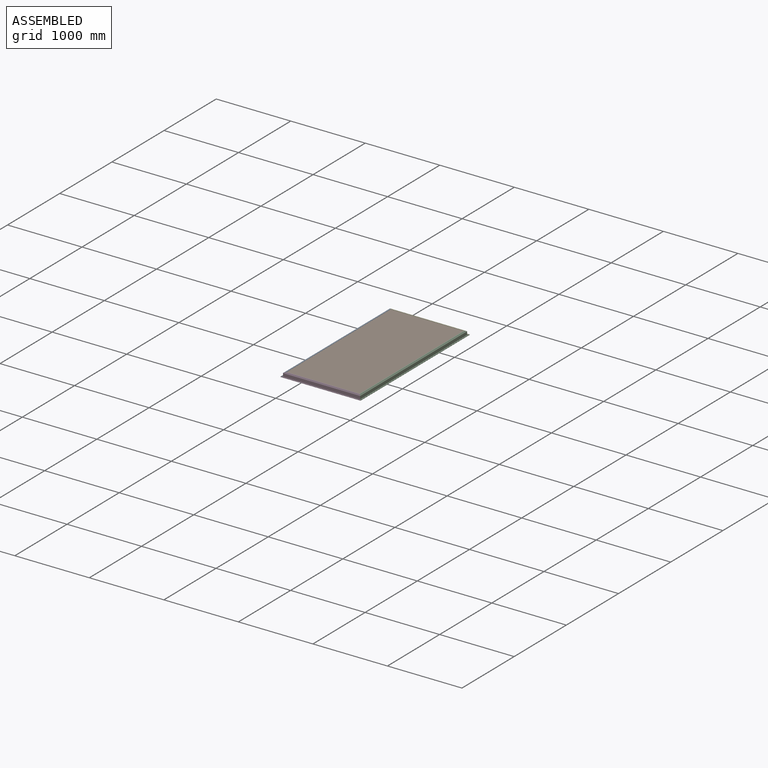
[diagram: assembled view]
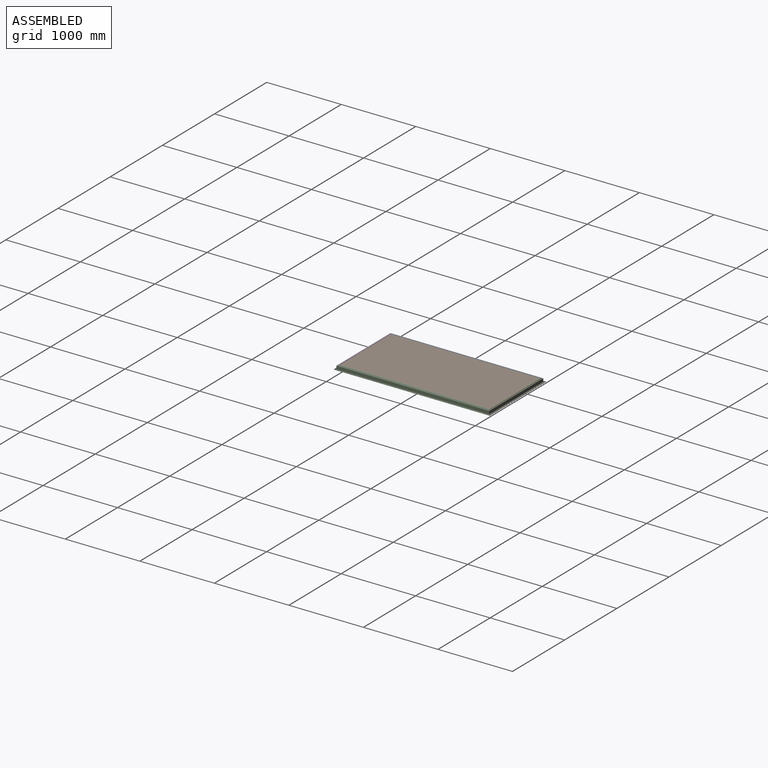
[diagram: assembled view, second angle]
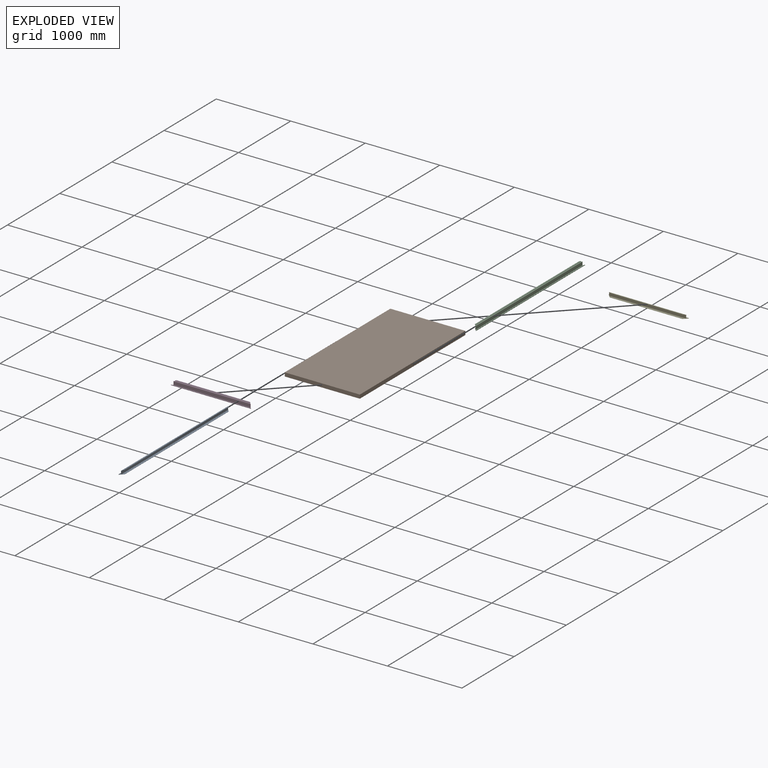
[diagram: exploded view]
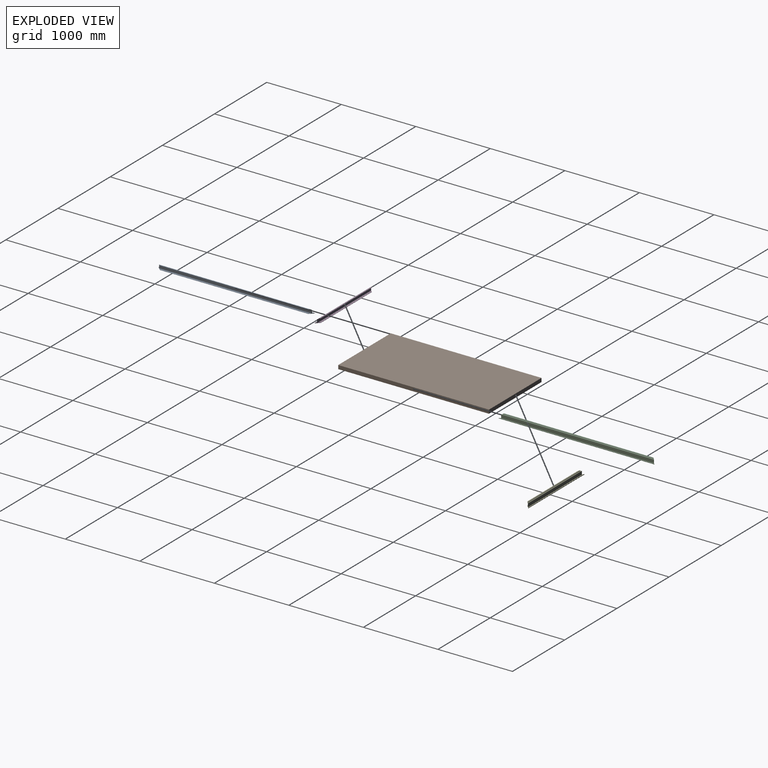
[diagram: exploded view, second angle]
ASSEMBLY  parts=5 mates=5
PART A: 28 faces, bbox 50x2091x54 mm
  f0: plane 2091x50mm, normal (0,0,-1), area 102050mm2, adj f22,f25,f26,f27
  f1: plane 2087x3mm, normal (0,0,1), area 6252mm2, adj f2,f24,f26,f27
  f2: plane 2081x3mm, normal (1,0,0), area 6243mm2, adj f1,f3,f26,f27
  f3: plane 2081x2mm, normal (0,0,1), area 4158mm2, adj f2,f4,f26,f27
  f4: plane 2077x3mm, normal (-1,0,0), area 6231mm2, adj f3,f5,f26,f27
  f5: plane 2077x13mm, normal (0,0,1), area 26832mm2, adj f4,f6,f26,f27
  f6: plane 2051x43mm, normal (1,0,0), area 88193mm2, adj f5,f7,f26,f27
  f7: cylinder r=2mm len=2051mm, axis (0,1,0), area 6438.8mm2, adj f6,f8,f26,f27
  f8: plane 2047x8mm, normal (0,0,1), area 16312mm2, adj f7,f9,f26,f27
  f9: cylinder r=2mm len=2031mm, axis (0,1,0), area 6372.6mm2, adj f8,f10,f26,f27
  f10: plane 2027x3mm, normal (1,0,0), area 6081mm2, adj f9,f11,f26,f27
  f11: cylinder r=2mm len=2027mm, axis (0,1,0), area 6363.4mm2, adj f10,f12,f26,f27
  f12: plane 2023x13mm, normal (0,0,1), area 26130mm2, adj f11,f13,f26,f27
  f13: plane 1997x2mm, normal (-1,0,0), area 3994mm2, adj f12,f14,f26,f27
  f14: plane 2019x11mm, normal (0,0,-1), area 22088mm2, adj f13,f15,f26,f27
  f15: cylinder r=2mm len=2023mm, axis (0,1,0), area 6350.9mm2, adj f14,f16,f26,f27
  f16: plane 2023x3mm, normal (-1,0,0), area 6069mm2, adj f15,f17,f26,f27
  f17: cylinder r=2mm len=2027mm, axis (0,1,0), area 6360mm2, adj f16,f18,f26,f27
  f18: plane 2043x8mm, normal (0,0,-1), area 16280mm2, adj f17,f19,f26,f27
  f19: cylinder r=2mm len=2047mm, axis (0,1,0), area 6426.3mm2, adj f18,f20,f26,f27
  f20: plane 2047x41mm, normal (-1,0,0), area 83927mm2, adj f19,f21,f26,f27
  f21: plane 2047x28mm, normal (0,0,1), area 56532mm2, adj f20,f22,f26,f27
  f22: plane 1991x2mm, normal (-1,0,0), area 3982mm2, adj f0,f21,f26,f27
  f23: plane 2091x2mm, normal (0,0,1), area 4178mm2, adj f24,f25,f26,f27
  f24: plane 2087x3mm, normal (-1,0,0), area 6261mm2, adj f1,f23,f26,f27
  f25: plane 2091x5mm, normal (1,0,0), area 10455mm2, adj f0,f23,f26,f27
  f26: plane 54x50mm, normal (-0.71,-0.71,0), area 376.2mm2, adj f0,f1,f2,f3,f4,f5,f6,f7
  f27: plane 54x50mm, normal (-0.71,0.71,0), area 376.2mm2, adj f0,f1,f2,f3,f4,f5,f6,f7
PART B: 6 faces, bbox 2023x50x1007 mm
  f0: plane 1007x50mm, normal (1,0,0), area 50350mm2, adj f1,f3,f4,f5
  f1: plane 2023x50mm, normal (0,0,1), area 101150mm2, adj f0,f2,f4,f5
  f2: plane 1007x50mm, normal (-1,0,0), area 50350mm2, adj f1,f3,f4,f5
  f3: plane 2023x50mm, normal (0,0,-1), area 101150mm2, adj f0,f2,f4,f5
  f4: plane 2023x1007mm, normal (0,-1,0), area 2037161mm2, adj f0,f1,f2,f3
  f5: plane 2023x1007mm, normal (0,1,0), area 2037161mm2, adj f0,f1,f2,f3
PART C: same geometry as A
PART D: 28 faces, bbox 50x1075x54 mm
  f0: plane 1075x50mm, normal (0,0,-1), area 51250mm2, adj f22,f25,f26,f27
  f1: plane 1071x3mm, normal (0,0,1), area 3204mm2, adj f2,f24,f26,f27
  f2: plane 1065x3mm, normal (1,0,0), area 3195mm2, adj f1,f3,f26,f27
  f3: plane 1065x2mm, normal (0,0,1), area 2126mm2, adj f2,f4,f26,f27
  f4: plane 1061x3mm, normal (-1,0,0), area 3183mm2, adj f3,f5,f26,f27
  f5: plane 1061x13mm, normal (0,0,1), area 13624mm2, adj f4,f6,f26,f27
  f6: plane 1035x43mm, normal (1,0,0), area 44505mm2, adj f5,f7,f26,f27
  f7: cylinder r=2mm len=1035mm, axis (0,1,0), area 3247mm2, adj f6,f8,f26,f27
  f8: plane 1031x8mm, normal (0,0,1), area 8184mm2, adj f7,f9,f26,f27
  f9: cylinder r=2mm len=1015mm, axis (0,1,0), area 3180.7mm2, adj f8,f10,f26,f27
  f10: plane 1011x3mm, normal (1,0,0), area 3033mm2, adj f9,f11,f26,f27
  f11: cylinder r=2mm len=1011mm, axis (0,1,0), area 3171.6mm2, adj f10,f12,f26,f27
  f12: plane 1007x13mm, normal (0,0,1), area 12922mm2, adj f11,f13,f26,f27
  f13: plane 981x2mm, normal (-1,0,0), area 1962mm2, adj f12,f14,f26,f27
  f14: plane 1003x11mm, normal (0,0,-1), area 10912mm2, adj f13,f15,f26,f27
  f15: cylinder r=2mm len=1007mm, axis (0,1,0), area 3159mm2, adj f14,f16,f26,f27
  f16: plane 1007x3mm, normal (-1,0,0), area 3021mm2, adj f15,f17,f26,f27
  f17: cylinder r=2mm len=1011mm, axis (0,1,0), area 3168.2mm2, adj f16,f18,f26,f27
  f18: plane 1027x8mm, normal (0,0,-1), area 8152mm2, adj f17,f19,f26,f27
  f19: cylinder r=2mm len=1031mm, axis (0,1,0), area 3234.4mm2, adj f18,f20,f26,f27
  f20: plane 1031x41mm, normal (-1,0,0), area 42271mm2, adj f19,f21,f26,f27
  f21: plane 1031x28mm, normal (0,0,1), area 28084mm2, adj f20,f22,f26,f27
  f22: plane 975x2mm, normal (-1,0,0), area 1950mm2, adj f0,f21,f26,f27
  f23: plane 1075x2mm, normal (0,0,1), area 2146mm2, adj f24,f25,f26,f27
  f24: plane 1071x3mm, normal (-1,0,0), area 3213mm2, adj f1,f23,f26,f27
  f25: plane 1075x5mm, normal (1,0,0), area 5375mm2, adj f0,f23,f26,f27
  f26: plane 54x50mm, normal (-0.71,-0.71,0), area 376.2mm2, adj f0,f1,f2,f3,f4,f5,f6,f7
  f27: plane 54x50mm, normal (-0.71,0.71,0), area 376.2mm2, adj f0,f1,f2,f3,f4,f5,f6,f7
PART E: same geometry as D
PLACE A rot(axis=(0,0,-1),180deg) t=(-980.25,-1865.52,0)mm
PLACE B rot(axis=(0.58,-0.58,-0.58),120deg) t=(-492.75,-820.02,52)mm
PLACE C t=(-5.25,225.48,0)mm
PLACE D rot(axis=(0,0,-1),90deg) t=(44.75,-1815.52,0)mm
PLACE E rot(axis=(0,0,1),90deg) t=(-1030.25,175.48,0)mm
MATE planar B.f0 <-> D.f16  axis (0,-1,0) through (-492.75,-1831.52,27)mm
MATE planar B.f4 <-> C.f21  axis (0,0,-1) through (-492.75,-820.02,2)mm
MATE fastened C.f27 <-> E.f26  axis (-0.71,0.71,0) through (19.86,200.59,20.81)mm
MATE fastened D.f27 <-> C.f26  axis (0.71,0.71,0) through (19.86,-1840.63,20.81)mm
MATE fastened A.f26 <-> E.f27  axis (0.71,0.71,0) through (-1005.36,200.59,20.81)mm
